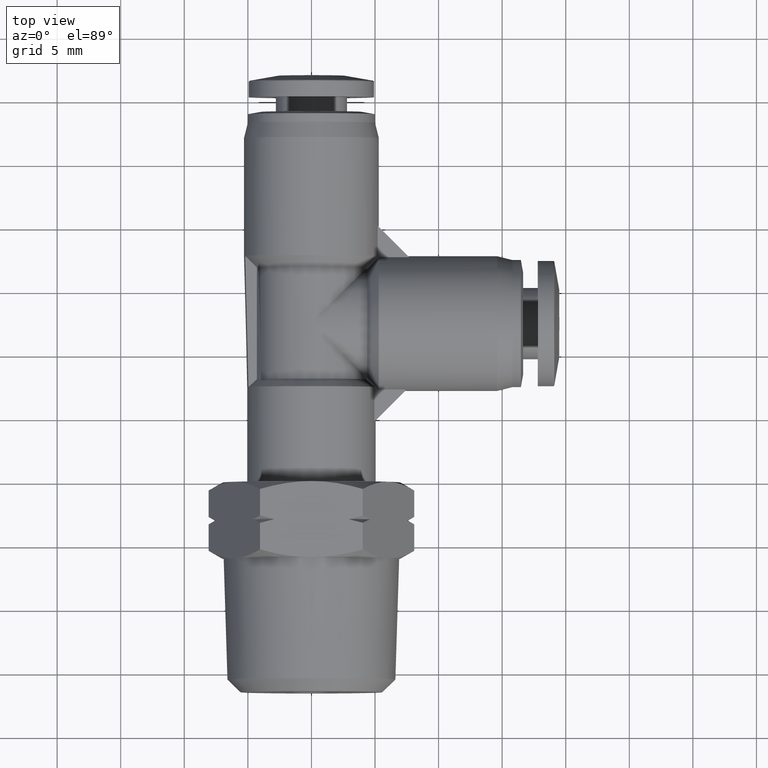
[diagram: clean part render]
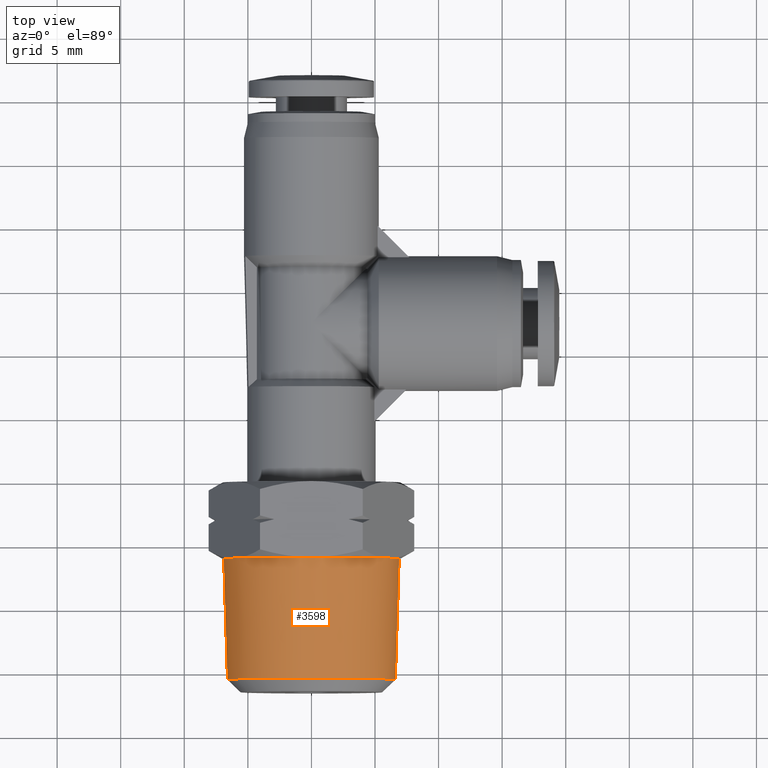
[diagram: same view with one face highlighted and labeled with its STEP entity id]
A machine part, top view. The second image highlights one B-rep face of the part: STEP entity #3598.
In plain terms, the highlighted conical surface has half-angle 1.79 deg.
Its self-contained STEP definition (entity closure, byte-faithful):
#14 = VERTEX_POINT ( 'NONE', #4447 ) ;
#329 = EDGE_CURVE ( 'NONE', #4650, #2359, #413, .T. ) ;
#348 = VECTOR ( 'NONE', #850, 39.37007874015748900 ) ;
#413 = LINE ( 'NONE', #871, #348 ) ;
#533 = DIRECTION ( 'NONE',  ( -4.551913999999999600E-012, 1.000000000000000000, 0.0000000000000000000 ) ) ;
#705 = DIRECTION ( 'NONE',  ( -0.03123631176568624300, 0.9995120273549872300, 2.859571013194569300E-028 ) ) ;
#850 = DIRECTION ( 'NONE',  ( 0.03123631175658689300, 0.9995120273552715600, 3.825344921830429000E-018 ) ) ;
#871 = CARTESIAN_POINT ( 'NONE',  ( 0.2716535433026596700, -0.2362204724373618000, 3.326796422813221800E-017 ) ) ;
#1475 = CARTESIAN_POINT ( 'NONE',  ( 1.075340740556056100E-012, -0.2362204724385983400, 0.0000000000000000000 ) ) ;
#1613 = AXIS2_PLACEMENT_3D ( 'NONE', #1475, #4743, #1952 ) ;
#1952 = DIRECTION ( 'NONE',  ( -1.000000000000000000, -4.551889260135397900E-012, 0.0000000000000000000 ) ) ;
#1969 = EDGE_CURVE ( 'NONE', #14, #4650, #5583, .T. ) ;
#2004 = VERTEX_POINT ( 'NONE', #2353 ) ;
#2130 = CARTESIAN_POINT ( 'NONE',  ( 1.075340740556056100E-012, -0.2362204724385983400, 0.0000000000000000000 ) ) ;
#2147 = DIRECTION ( 'NONE',  ( -1.000000000000000000, -4.551889260135397900E-012, 0.0000000000000000000 ) ) ;
#2353 = CARTESIAN_POINT ( 'NONE',  ( -0.2716535433005090000, -0.2362204724398348800, 0.0000000000000000000 ) ) ;
#2359 = VERTEX_POINT ( 'NONE', #3150 ) ;
#3150 = CARTESIAN_POINT ( 'NONE',  ( 0.2716535433026596700, -0.2362204724373618000, 3.326796422813221800E-017 ) ) ;
#3182 = CARTESIAN_POINT ( 'NONE',  ( 0.2599643666530863100, -0.6102554319915232100, 3.183645295341864300E-017 ) ) ;
#3307 = CARTESIAN_POINT ( 'NONE',  ( 2.777917799400083100E-012, -0.6102554319927066000, 0.0000000000000000000 ) ) ;
#3481 = AXIS2_PLACEMENT_3D ( 'NONE', #2130, #5316, #2147 ) ;
#3484 = LINE ( 'NONE', #4392, #4552 ) ;
#3598 = ADVANCED_FACE ( 'NONE', ( #5442 ), #4787, .T. ) ;
#3703 = ORIENTED_EDGE ( 'NONE', *, *, #3999, .F. ) ;
#3767 = DIRECTION ( 'NONE',  ( -1.000000000000000000, -4.552302940175144900E-012, 0.0000000000000000000 ) ) ;
#3849 = AXIS2_PLACEMENT_3D ( 'NONE', #3307, #533, #3767 ) ;
#3888 = ORIENTED_EDGE ( 'NONE', *, *, #329, .T. ) ;
#3958 = ORIENTED_EDGE ( 'NONE', *, *, #1969, .T. ) ;
#3999 = EDGE_CURVE ( 'NONE', #14, #2004, #3484, .T. ) ;
#4392 = CARTESIAN_POINT ( 'NONE',  ( -0.2716535433005090000, -0.2362204724398348800, 0.0000000000000000000 ) ) ;
#4447 = CARTESIAN_POINT ( 'NONE',  ( -0.2599643666475305300, -0.6102554319938898700, 2.351721558167104700E-027 ) ) ;
#4552 = VECTOR ( 'NONE', #705, 39.37007874015748900 ) ;
#4635 = ORIENTED_EDGE ( 'NONE', *, *, #4966, .T. ) ;
#4650 = VERTEX_POINT ( 'NONE', #3182 ) ;
#4743 = DIRECTION ( 'NONE',  ( 4.551889260135397900E-012, -1.000000000000000000, -2.860967086870837300E-028 ) ) ;
#4787 = CONICAL_SURFACE ( 'NONE', #3481, 0.2716535433015843100, 0.03124139357495354600 ) ;
#4966 = EDGE_CURVE ( 'NONE', #2359, #2004, #5067, .T. ) ;
#5067 = CIRCLE ( 'NONE', #1613, 0.2716535433015843100 ) ;
#5316 = DIRECTION ( 'NONE',  ( -4.551889260135397900E-012, 1.000000000000000000, 2.860967086870837300E-028 ) ) ;
#5442 = FACE_OUTER_BOUND ( 'NONE', #5840, .T. ) ;
#5583 = CIRCLE ( 'NONE', #3849, 0.2599643666969639900 ) ;
#5840 = EDGE_LOOP ( 'NONE', ( #3958, #3888, #4635, #3703 ) ) ;